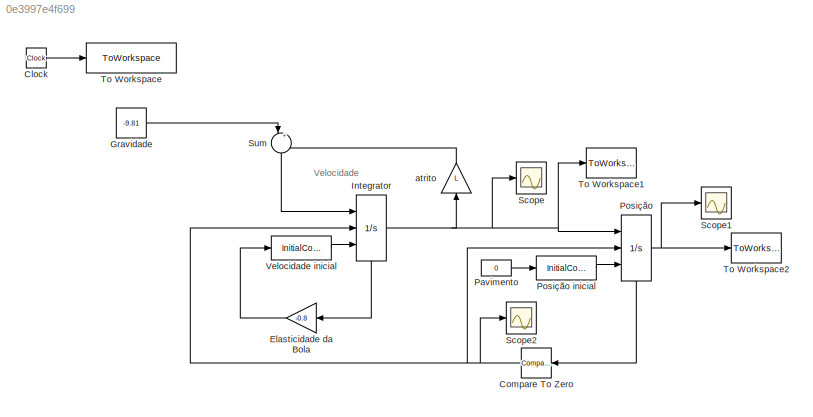
MODEL slx_0e3997e4f699
KIND model
CONFIG AbsTol = auto
CONFIG EnableMultiTasking = off
CONFIG FixedStep = auto
CONFIG MaxStep = 0.001
CONFIG MinStep = auto
CONFIG RelTol = 1e-4
CONFIG SampleTimeConstraint = Unconstrained
CONFIG SolverName = VariableStepAuto
CONFIG StartTime = 0.0
CONFIG StopTime = 15
BLOCK [Clock] Clock
BLOCK [Reference] Compare To Zero  REF=simulink/Logic and Bit
Operations/Compare
To Zero
  NameLocation = top
  Ports = [1, 1]
  SourceBlock = simulink/Logic and Bit\nOperations/Compare\nTo Zero
  SourceProductBaseCode = SL
  SourceType = Compare To Zero
BLOCK [Gain] Elasticidade da Bola
  Gain = -0.8
  NameLocation = top
BLOCK [Constant] Gravidade
  NameLocation = top
  Value = -9.81
BLOCK [Integrator] Integrator
  ExternalReset = rising
  InitialConditionSource = external
  NameLocation = top
  Ports = [3, 1, 0, 0, 1]
  ShowStatePort = on
BLOCK [Constant] Pavimento
  Value = 0
BLOCK [Integrator] Posição
  ExternalReset = rising
  InitialConditionSource = external
  NameLocation = top
  Ports = [3, 1, 0, 0, 1]
  ShowStatePort = on
BLOCK [InitialCondition] Posição inicial
  Value = 10
BLOCK [Scope] Scope
  Floating = off
  NumInputPorts = 1
  Ports = [1]
  ScopeSpecificationString = Simulink.scopes.TimeScopeBlockCfg('CurrentConfiguration', extmgr.ConfigurationSet(extmgr.Configuration('Core','General UI',true),extmgr.Configuration('Core','Source UI',true),extmgr.Configuration('Sources','WiredSimulink',true),extmgr.Configuration('Visuals','Time Domain',true,'SerializedDisplays',{struct('MinYLimReal','-2.40345','MaxYLimReal','2.01105','YLabelReal','','MinYLimMag','0.00000','MaxY...<+1352ch>
BLOCK [Scope] Scope1
  Floating = off
  NumInputPorts = 1
  Ports = [1]
  ScopeSpecificationString = Simulink.scopes.TimeScopeBlockCfg('CurrentConfiguration', extmgr.ConfigurationSet(extmgr.Configuration('Core','General UI',true),extmgr.Configuration('Core','Source UI',true),extmgr.Configuration('Sources','WiredSimulink',true,'DataLoggingVariableName','ScopeData1'),extmgr.Configuration('Visuals','Time Domain',true,'SerializedDisplays',{struct('MinYLimReal','-1.25','MaxYLimReal','11.25','YLabelRea...<+1385ch>
BLOCK [Scope] Scope2
  Floating = off
  NumInputPorts = 1
  Ports = [1]
  ScopeSpecificationString = Simulink.scopes.TimeScopeBlockCfg('CurrentConfiguration', extmgr.ConfigurationSet(extmgr.Configuration('Core','General UI',true),extmgr.Configuration('Core','Source UI',true),extmgr.Configuration('Sources','WiredSimulink',true,'DataLoggingVariableName','ScopeData2'),extmgr.Configuration('Visuals','Time Domain',true,'SerializedDisplays',{struct('MinYLimReal','-0.125','MaxYLimReal','1.125','YLabelRe...<+1362ch>
BLOCK [Sum] Sum
  Inputs = |+-
  NameLocation = right
  Ports = [2, 1]
BLOCK [ToWorkspace] To Workspace
  FixptAsFi = on
  MaxDataPoints = inf
  Ports = [1]
  SampleTime = -1
  Save2DSignal = 2-D array (concatenate along first dimension)
  VariableName = t
BLOCK [ToWorkspace] To Workspace1
  FixptAsFi = on
  MaxDataPoints = inf
  Ports = [1]
  SampleTime = -1
  Save2DSignal = 2-D array (concatenate along first dimension)
  VariableName = v
BLOCK [ToWorkspace] To Workspace2
  FixptAsFi = on
  MaxDataPoints = inf
  Ports = [1]
  SampleTime = -1
  Save2DSignal = 2-D array (concatenate along first dimension)
  VariableName = z
BLOCK [InitialCondition] Velocidade inicial
  Value = 0
BLOCK [Gain] atrito
  Gain = L
  NameLocation = left
ANNOTATION (root): Velocidade
LINE Clock:1 -> To Workspace:1
NET Compare To Zero:1 -> Integrator:2, Posição:2, Scope2:1
LINE Elasticidade da Bola:1 -> Velocidade inicial:1
LINE Gravidade:1 -> Sum:1
NET Integrator:1 -> Posição:1, Scope:1, To Workspace1:1, atrito:1
LINE Integrator:state -> Elasticidade da Bola:1
LINE Pavimento:1 -> Posição inicial:1
LINE Posição inicial:1 -> Posição:3
NET Posição:1 -> Scope1:1, To Workspace2:1
LINE Posição:state -> Compare To Zero:1
LINE Sum:1 -> Integrator:1
LINE Velocidade inicial:1 -> Integrator:3
LINE atrito:1 -> Sum:2
note: NET lines group one-source signal fan-out (src -> all destinations, sorted); 1:1 wires keep LINE
